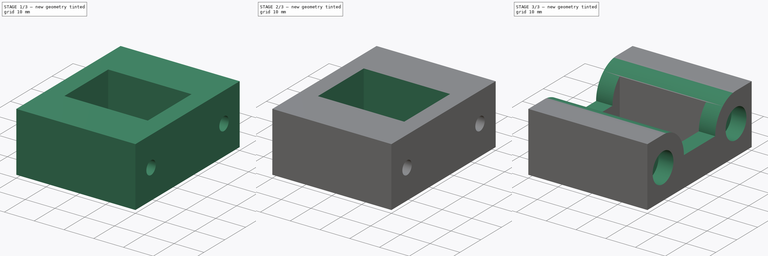
[diagram: build sequence overview — one tinted view per stage of 3, left to right]
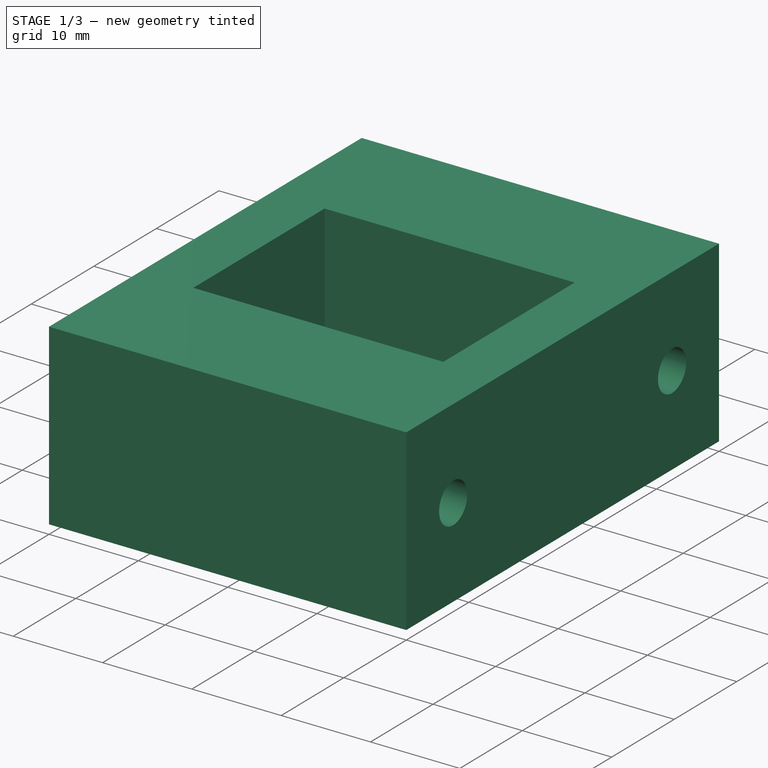
[diagram: stage 1 of 3 — iso view after this stage's code; geometry added in this stage tinted green]
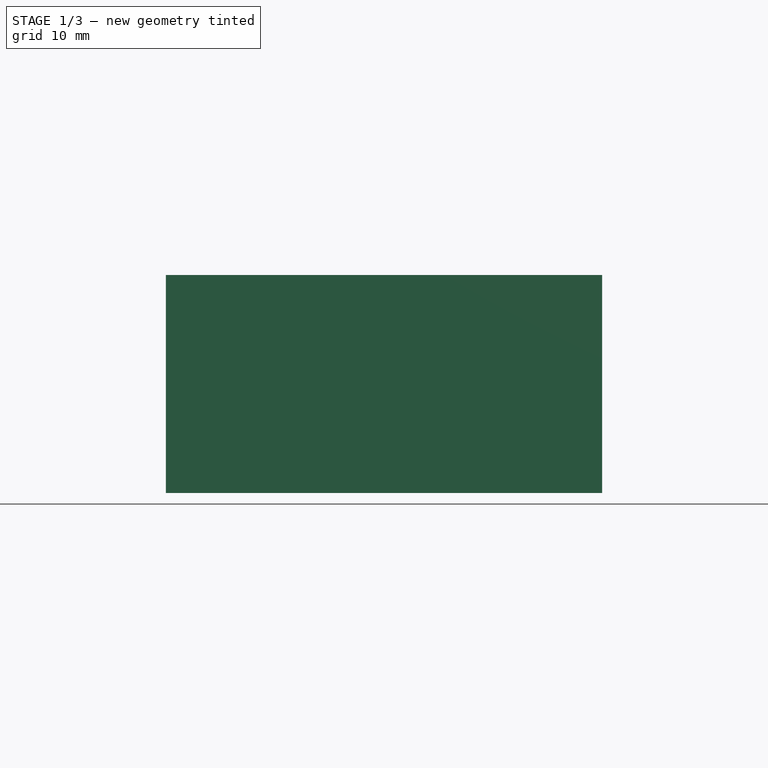
[diagram: stage 1 of 3 — front view after this stage's code; geometry added in this stage tinted green]
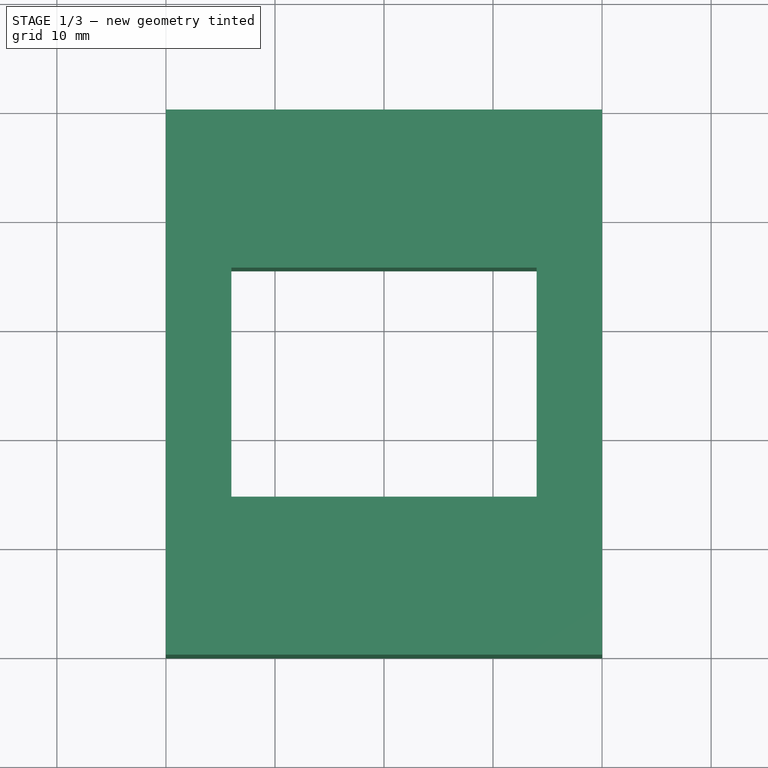
[diagram: stage 1 of 3 — top view after this stage's code; geometry added in this stage tinted green]
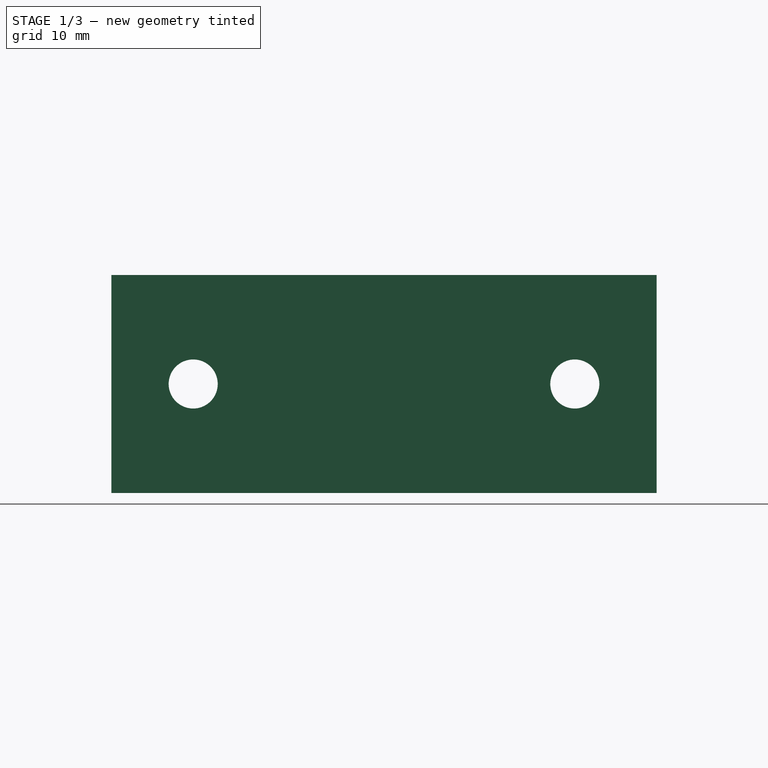
[diagram: stage 1 of 3 — right view after this stage's code; geometry added in this stage tinted green]
FCSTD DOCUMENT
Label: power-plug-mount
objects: Sketcher::SketchObject×5, PartDesign::Pocket×4, PartDesign::Pad×1
note: 15 computed .brp shape members not serialized (recipe doc carries the construction recipe); baked Part::Feature solids carry a one-line shape summary decoded from their .brp

FEATURE [Sketcher::SketchObject] Sketch
  sketch-geometry (8):
    g0: LineSegment StartX=0 StartY=0 StartZ=0 EndX=40 EndY=0 EndZ=0
    g1: LineSegment StartX=40 StartY=0 StartZ=0 EndX=40 EndY=50 EndZ=0
    g2: LineSegment StartX=40 StartY=50 StartZ=0 EndX=0 EndY=50 EndZ=0
    g3: LineSegment StartX=0 StartY=50 StartZ=0 EndX=0 EndY=0 EndZ=0
    g4: LineSegment StartX=6 StartY=35.5 StartZ=0 EndX=34 EndY=35.5 EndZ=0
    g5: LineSegment StartX=34 StartY=35.5 StartZ=0 EndX=34 EndY=14.5 EndZ=0
    g6: LineSegment StartX=34 StartY=14.5 StartZ=0 EndX=6 EndY=14.5 EndZ=0
    g7: LineSegment StartX=6 StartY=14.5 StartZ=0 EndX=6 EndY=35.5 EndZ=0
  constraints (23):
    c: Coincident(g0,g1)
    c: Coincident(g1,g2)
    c: Coincident(g2,g3)
    c: Coincident(g3,g0)
    c: Horizontal(g0)
    c: Horizontal(g2)
    c: Vertical(g1)
    c: Vertical(g3)
    c: Coincident(g0,g-1)
    c: Distance(g3) = 50
    c: Distance(g2) = 40
    c: Coincident(g4,g5)
    c: Coincident(g5,g6)
    c: Coincident(g6,g7)
    c: Coincident(g7,g4)
    c: Horizontal(g4)
    c: Horizontal(g6)
    c: Vertical(g5)
    c: Vertical(g7)
    c: Distance(g4) = 28
    c: Distance(g5) = 21
    c: DistanceX(g6) = 6
    c: DistanceY(g6) = 14.5
FEATURE [PartDesign::Pad] Pad
  Length = 20
  Length2 = 100
  Sketch = -> Sketch
  Type = 0
FEATURE [Sketcher::SketchObject] Sketch001
  ExternalGeometry = -> [Pad]
  Placement = pos=(40,0,0) rot=(0.57735,0.57735,0.57735;2.0944rad)
  Support = -> Pad [Face2]
  sketch-geometry (2):
    g0: Circle CenterX=7.5 CenterY=10 CenterZ=0 NormalX=0 NormalY=0 NormalZ=1 Radius=2.25
    g1: Circle CenterX=42.5 CenterY=10 CenterZ=0 NormalX=0 NormalY=0 NormalZ=1 Radius=2.25
  constraints (6):
    c: Equal(g1,g0)
    c: Radius(g1) = 2.25
    c: DistanceX(g0) = 7.5
    c: DistanceY(g0) = 10
    c: DistanceY(g0,g1) = 0
    c: DistanceX(g1,g-3) = 7.5
FEATURE [PartDesign::Pocket] Pocket
  Length = 5
  Sketch = -> Sketch001
  Type = 1
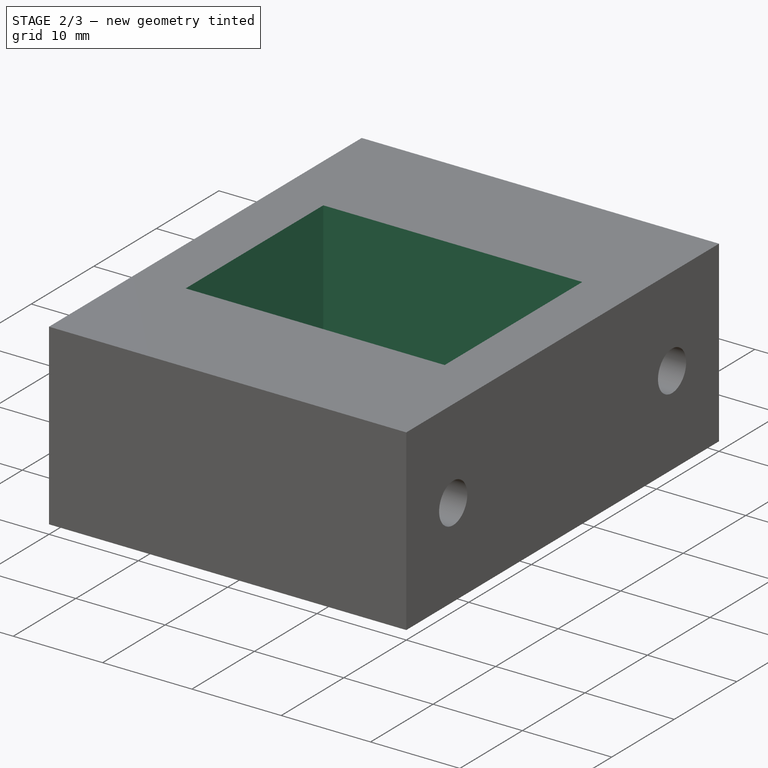
[diagram: stage 2 of 3 — iso view after this stage's code; geometry added in this stage tinted green]
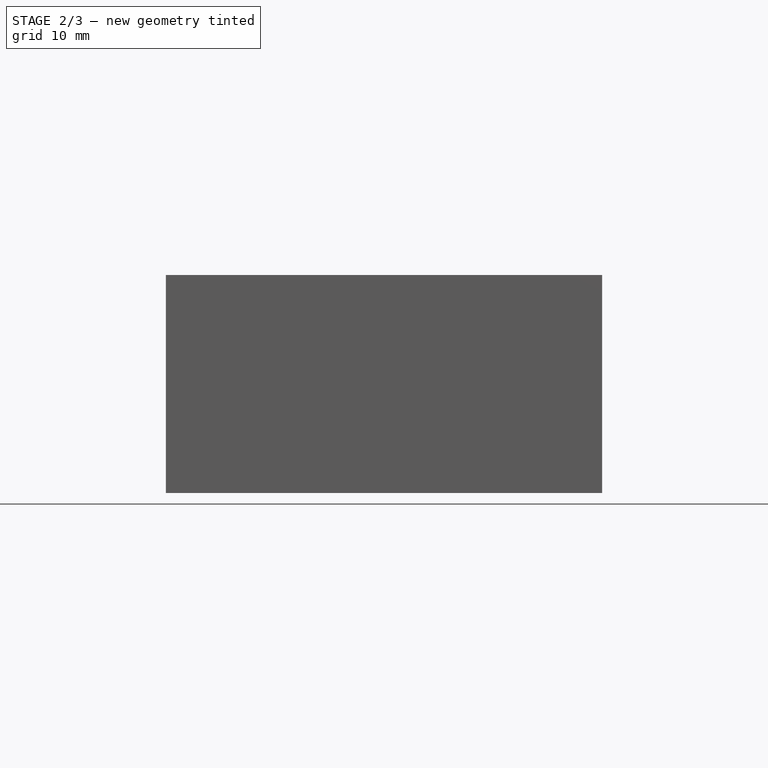
[diagram: stage 2 of 3 — front view after this stage's code; geometry added in this stage tinted green]
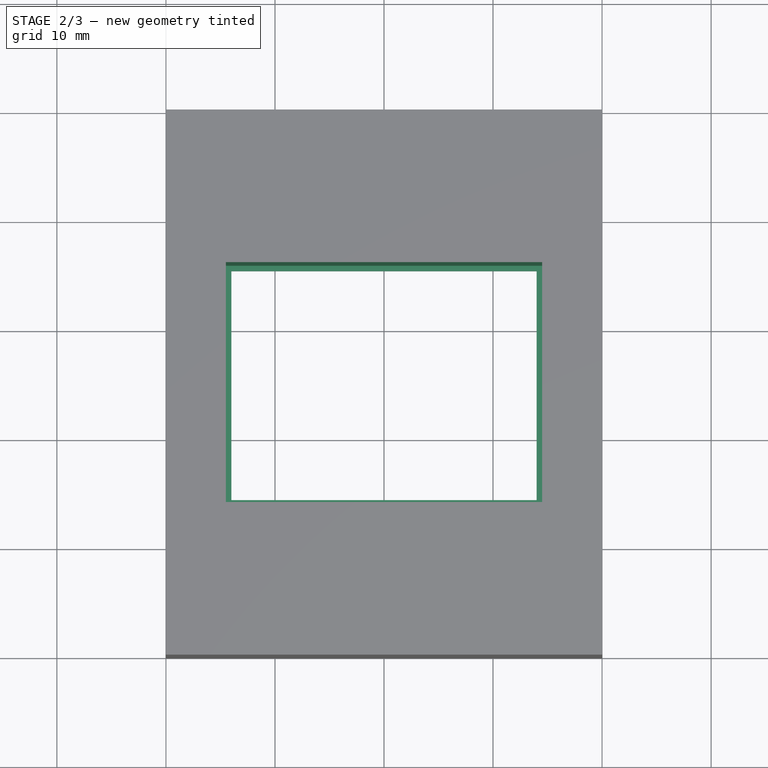
[diagram: stage 2 of 3 — top view after this stage's code; geometry added in this stage tinted green]
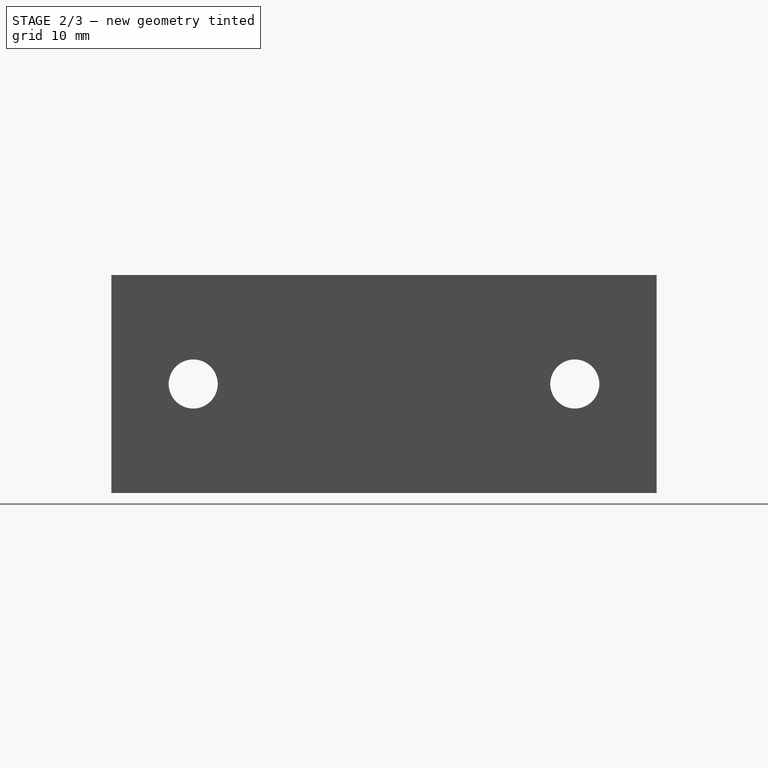
[diagram: stage 2 of 3 — right view after this stage's code; geometry added in this stage tinted green]
FEATURE [Sketcher::SketchObject] Sketch002
  ExternalGeometry = -> [Pocket]
  Placement = pos=(0,0,20) rot=(0,0,1;0rad)
  Support = -> Pocket [Face5]
  sketch-geometry (4):
    g0: LineSegment StartX=5.5 StartY=36 StartZ=0 EndX=34.5 EndY=36 EndZ=0
    g1: LineSegment StartX=34.5 StartY=36 StartZ=0 EndX=34.5 EndY=14 EndZ=0
    g2: LineSegment StartX=34.5 StartY=14 StartZ=0 EndX=5.5 EndY=14 EndZ=0
    g3: LineSegment StartX=5.5 StartY=14 StartZ=0 EndX=5.5 EndY=36 EndZ=0
  constraints (12):
    c: Coincident(g0,g1)
    c: Coincident(g1,g2)
    c: Coincident(g2,g3)
    c: Coincident(g3,g0)
    c: Horizontal(g0)
    c: Horizontal(g2)
    c: Vertical(g1)
    c: Vertical(g3)
    c: Distance(g2) = 29
    c: Distance(g1) = 22
    c: DistanceX(g-3,g2) = -0.5
    c: DistanceY(g-3,g2) = -0.5
FEATURE [PartDesign::Pocket] Pocket001
  Length = 19
  Sketch = -> Sketch002
  Type = 0
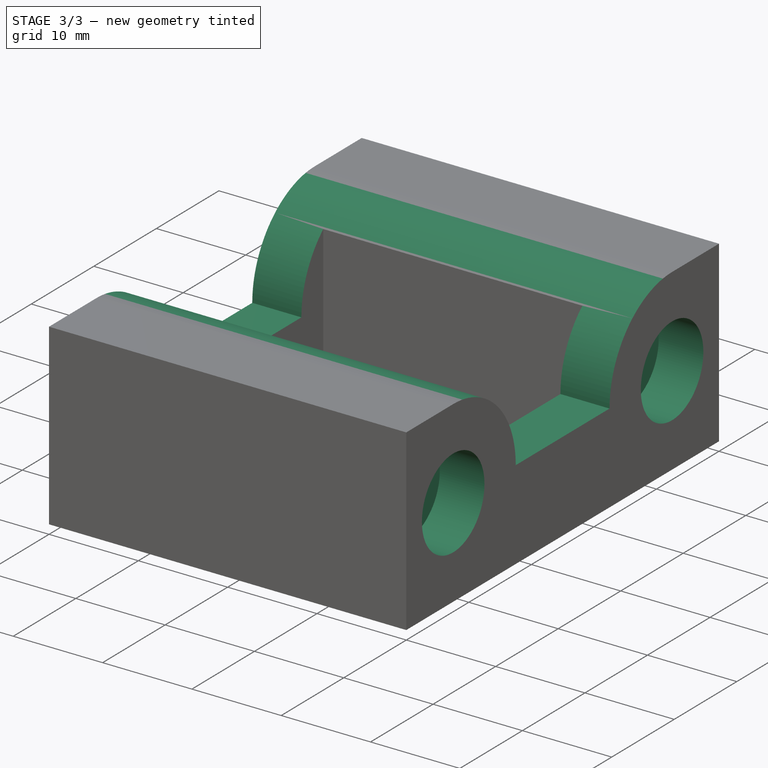
[diagram: stage 3 of 3 — iso view after this stage's code; geometry added in this stage tinted green]
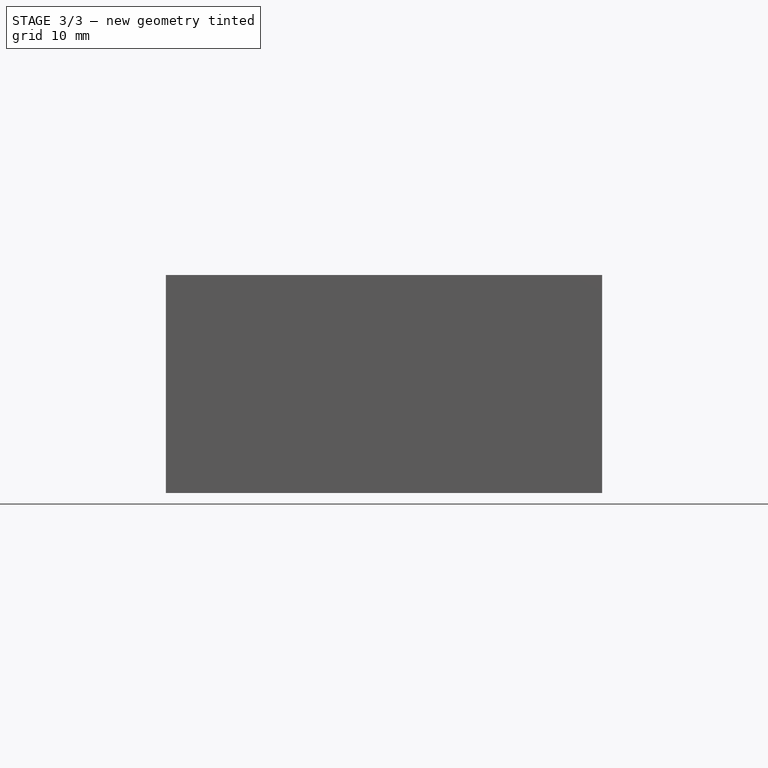
[diagram: stage 3 of 3 — front view after this stage's code; geometry added in this stage tinted green]
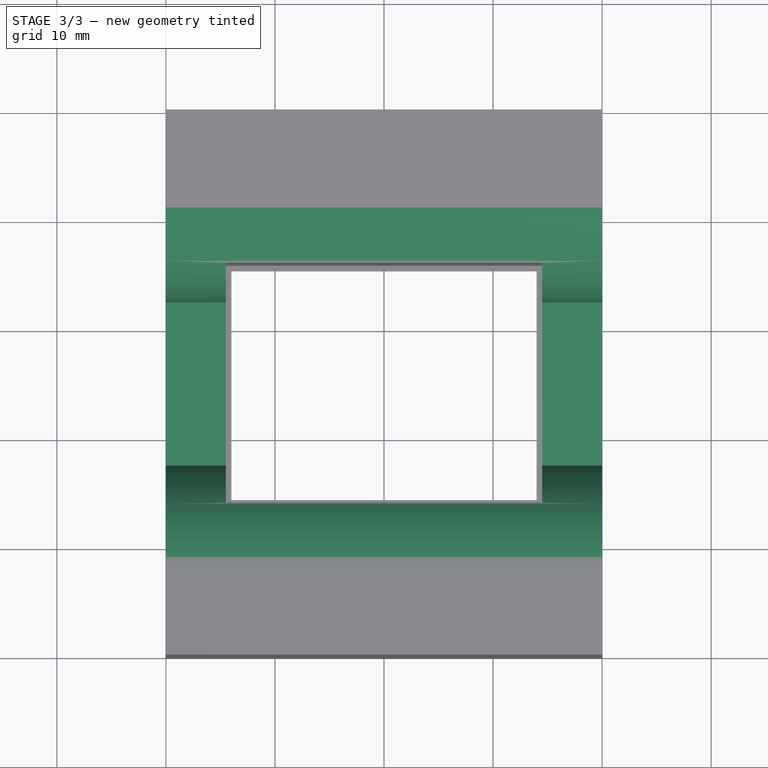
[diagram: stage 3 of 3 — top view after this stage's code; geometry added in this stage tinted green]
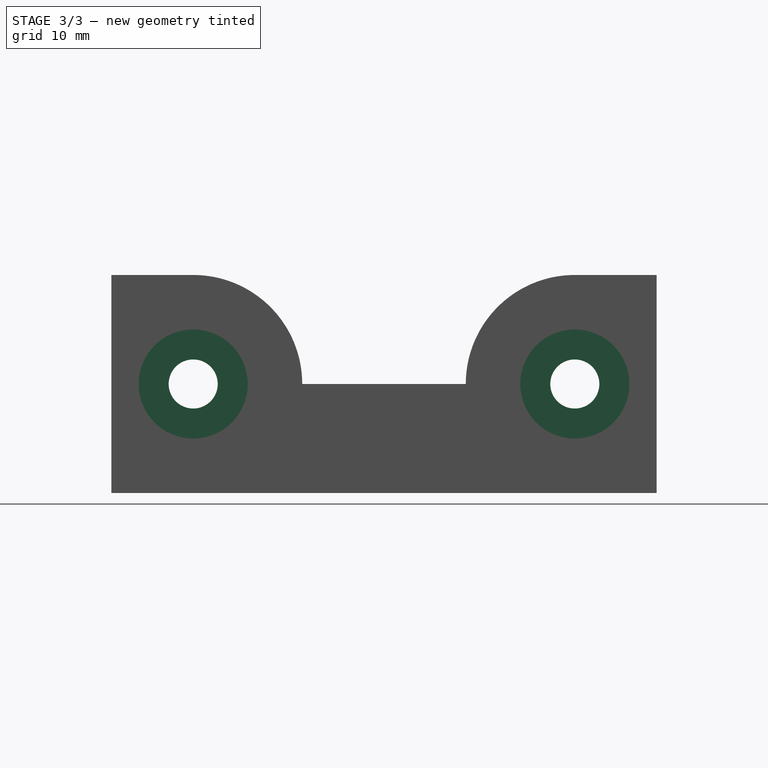
[diagram: stage 3 of 3 — right view after this stage's code; geometry added in this stage tinted green]
FEATURE [Sketcher::SketchObject] Sketch003
  ExternalGeometry = -> [Pocket001]
  Placement = pos=(40,0,0) rot=(0.57735,0.57735,0.57735;2.0944rad)
  Support = -> Pocket001 [Face3]
  sketch-geometry (2):
    g0: Circle CenterX=7.5 CenterY=10 CenterZ=0 NormalX=0 NormalY=0 NormalZ=1 Radius=5
    g1: Circle CenterX=42.5 CenterY=10 CenterZ=0 NormalX=0 NormalY=0 NormalZ=1 Radius=5
  constraints (4):
    c: Coincident(g0,g-3)
    c: Coincident(g1,g-4)
    c: Equal(g0,g1)
    c: Radius(g1) = 5
FEATURE [PartDesign::Pocket] Pocket002
  Length = 5
  Sketch = -> Sketch003
  Type = 0
FEATURE [Sketcher::SketchObject] Sketch004
  ExternalGeometry = -> [Pocket002]
  Placement = pos=(40,0,0) rot=(0.57735,0.57735,0.57735;2.0944rad)
  Support = -> Pocket002 [Face3]
  sketch-geometry (6):
    g0: ArcOfCircle CenterX=7.5 CenterY=10 CenterZ=0 NormalX=0 NormalY=0 NormalZ=1 Radius=10 StartAngle=0 EndAngle=1.5708
    g1: ArcOfCircle CenterX=42.5 CenterY=10 CenterZ=0 NormalX=0 NormalY=0 NormalZ=1 Radius=10 StartAngle=1.5708 EndAngle=3.14159
    g2: LineSegment StartX=32.5 StartY=10 StartZ=0 EndX=17.5 EndY=10 EndZ=0
    g3: LineSegment StartX=7.5 StartY=20 StartZ=0 EndX=7.5 EndY=22 EndZ=0
    g4: LineSegment StartX=7.5 StartY=22 StartZ=0 EndX=42.5 EndY=22 EndZ=0
    g5: LineSegment StartX=42.5 StartY=22 StartZ=0 EndX=42.5 EndY=20 EndZ=0
  constraints (18):
    c: Coincident(g0,g-3)
    c: Coincident(g1,g-4)
    c: Coincident(g2,g1)
    c: Coincident(g2,g0)
    c: Horizontal(g2)
    c: Equal(g1,g0)
    c: DistanceY(g0,g0) = 0
    c: Radius(g0) = 10
    c: Coincident(g0,g3)
    c: Coincident(g3,g4)
    c: Horizontal(g4)
    c: Coincident(g4,g5)
    c: Coincident(g5,g1)
    c: Vertical(g5)
    c: Vertical(g3)
    c: Perpendicular(g3,g0)
    c: Perpendicular(g1,g5)
    c: Distance(g3) = 2
FEATURE [PartDesign::Pocket] Pocket003
  Length = 34.5
  Sketch = -> Sketch004
  Type = 1
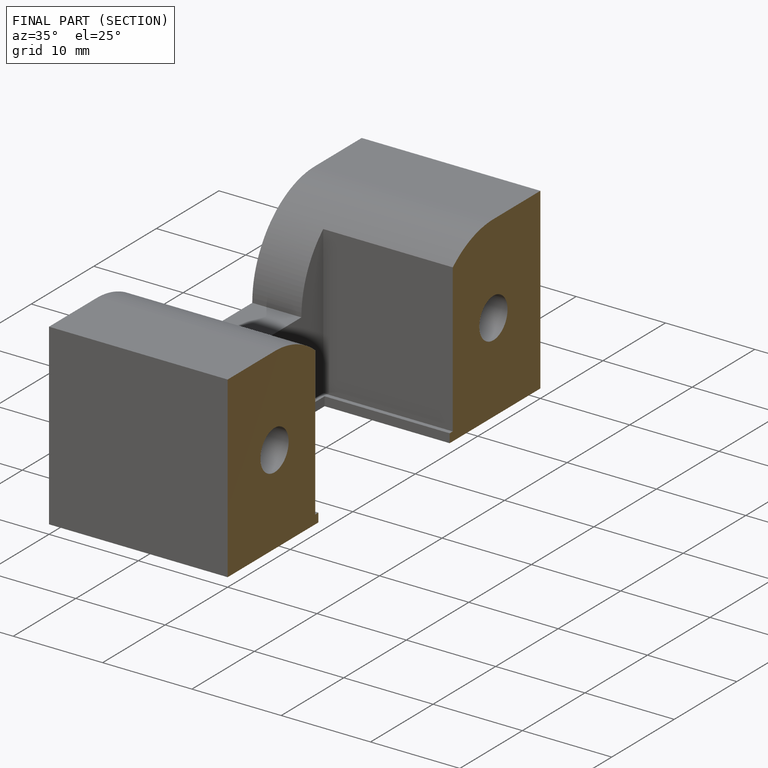
[diagram: finished part — half-section view (interior)]
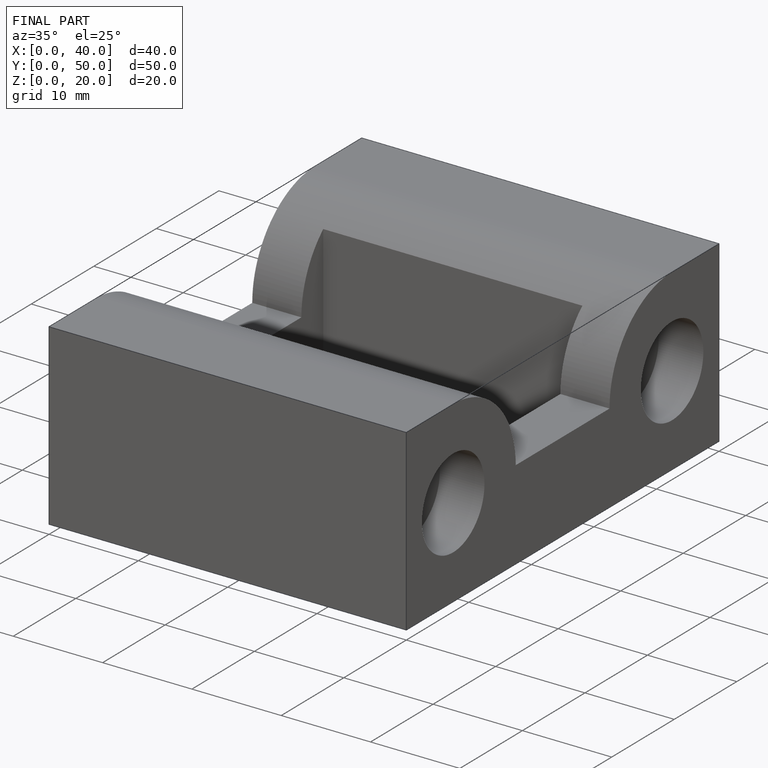
[diagram: finished part — iso view with bounding-box wireframe]
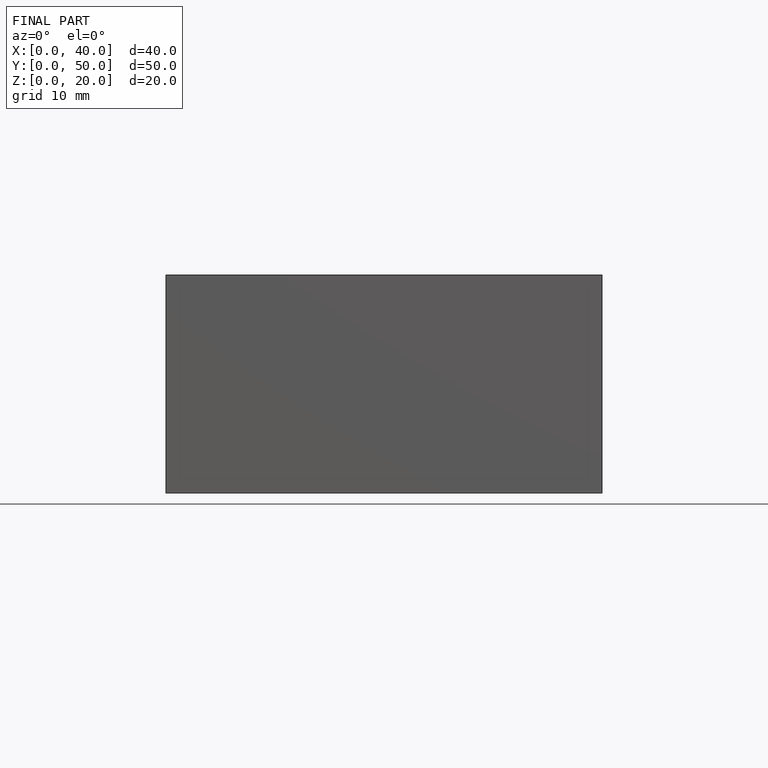
[diagram: finished part — front view with bounding-box wireframe]
